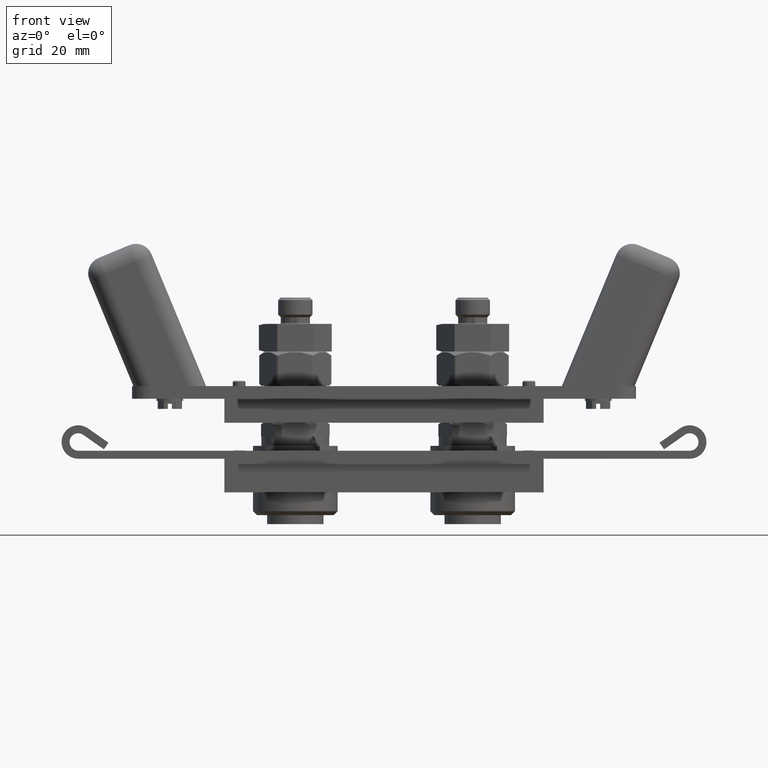
[diagram: clean part render]
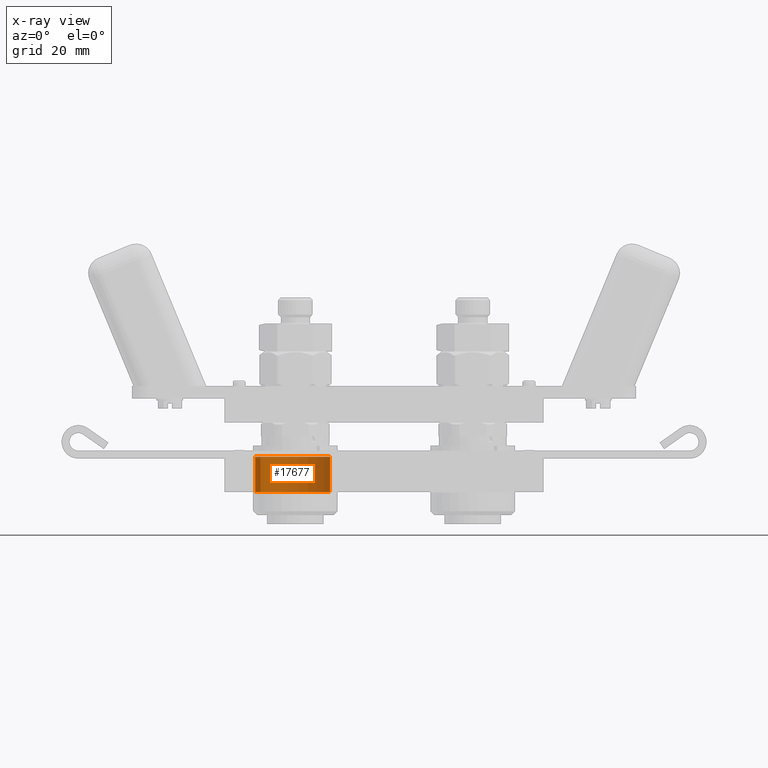
[diagram: x-ray — body ghosted, one internal face saturated and labeled with its STEP entity id]
A machine part, front view, then the same camera in x-ray: the body is ghosted and one INTERNAL B-rep face — a face not visible from any outside direction — is saturated and labeled: STEP entity #17677.
In plain terms, the highlighted cylindrical surface (partial cylindrical patch) has radius 15.1765 mm, axis along (0, 0, -1).
Its self-contained STEP definition (entity closure, byte-faithful):
#1568=CARTESIAN_POINT('',(-1.32E0,1.75E0,-5.E-1));
#1569=DIRECTION('',(0.E0,0.E0,1.E0));
#1570=DIRECTION('',(8.660254037844E-1,5.E-1,0.E0));
#1571=AXIS2_PLACEMENT_3D('',#1568,#1569,#1570);
#2111=DIRECTION('',(0.E0,0.E0,-1.E0));
#2112=VECTOR('',#2111,5.28E-1);
#2113=CARTESIAN_POINT('',(-8.025498212388E-1,2.04875E0,2.8E-2));
#2114=LINE('',#2113,#2112);
#2249=CARTESIAN_POINT('',(-1.32E0,1.75E0,2.8E-2));
#2250=DIRECTION('',(0.E0,0.E0,-1.E0));
#2251=DIRECTION('',(-8.660254037844E-1,-5.E-1,0.E0));
#2252=AXIS2_PLACEMENT_3D('',#2249,#2250,#2251);
#2274=DIRECTION('',(0.E0,0.E0,-1.E0));
#2275=VECTOR('',#2274,5.28E-1);
#2276=CARTESIAN_POINT('',(-1.837450178761E0,1.45125E0,2.8E-2));
#2277=LINE('',#2276,#2275);
#12319=CARTESIAN_POINT('',(-1.837450178761E0,1.45125E0,-5.E-1));
#12320=CARTESIAN_POINT('',(-8.025498212388E-1,2.04875E0,-5.E-1));
#12321=VERTEX_POINT('',#12319);
#12322=VERTEX_POINT('',#12320);
#12491=CARTESIAN_POINT('',(-8.025498212388E-1,2.04875E0,2.8E-2));
#12492=VERTEX_POINT('',#12491);
#12493=CARTESIAN_POINT('',(-1.837450178761E0,1.45125E0,2.8E-2));
#12494=VERTEX_POINT('',#12493);
#17666=CARTESIAN_POINT('',(-1.32E0,1.75E0,2.010591520795E0));
#17667=DIRECTION('',(0.E0,0.E0,-1.E0));
#17668=DIRECTION('',(-8.660254037844E-1,-5.E-1,0.E0));
#17669=AXIS2_PLACEMENT_3D('',#17666,#17667,#17668);
#17670=CYLINDRICAL_SURFACE('',#17669,5.975E-1);
#17671=ORIENTED_EDGE('',*,*,#17470,.T.);
#17672=ORIENTED_EDGE('',*,*,#16316,.F.);
#17673=ORIENTED_EDGE('',*,*,#17467,.F.);
#17674=ORIENTED_EDGE('',*,*,#17649,.F.);
#17675=EDGE_LOOP('',(#17671,#17672,#17673,#17674));
#17676=FACE_OUTER_BOUND('',#17675,.F.);
#1572=CIRCLE('',#1571,5.975E-1);
#2253=CIRCLE('',#2252,5.975E-1);
#16316=EDGE_CURVE('',#12322,#12321,#1572,.T.);
#17467=EDGE_CURVE('',#12492,#12322,#2114,.T.);
#17470=EDGE_CURVE('',#12494,#12321,#2277,.T.);
#17649=EDGE_CURVE('',#12494,#12492,#2253,.T.);
#17677=ADVANCED_FACE('',(#17676),#17670,.T.);